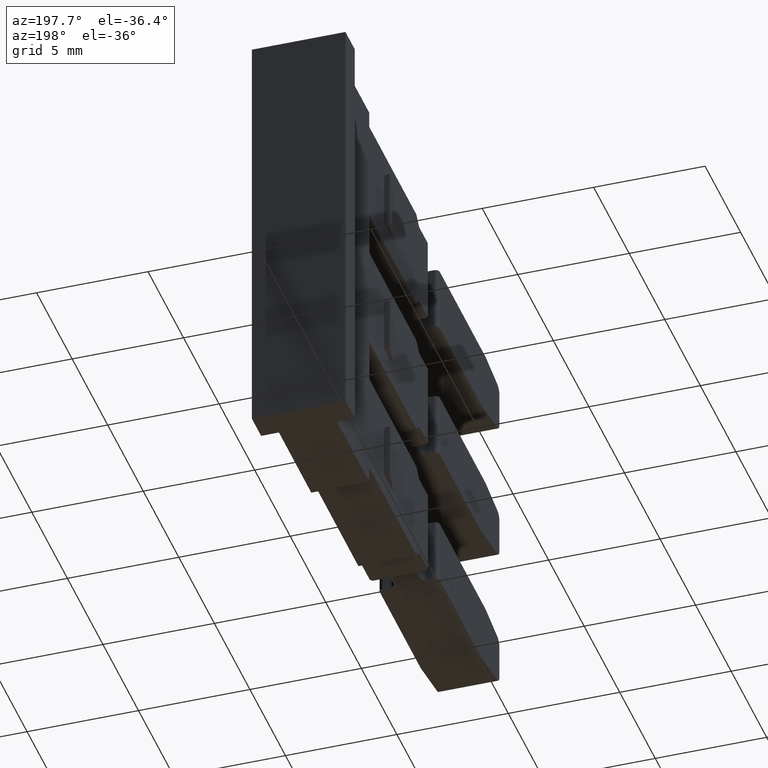
[diagram: clean part render]
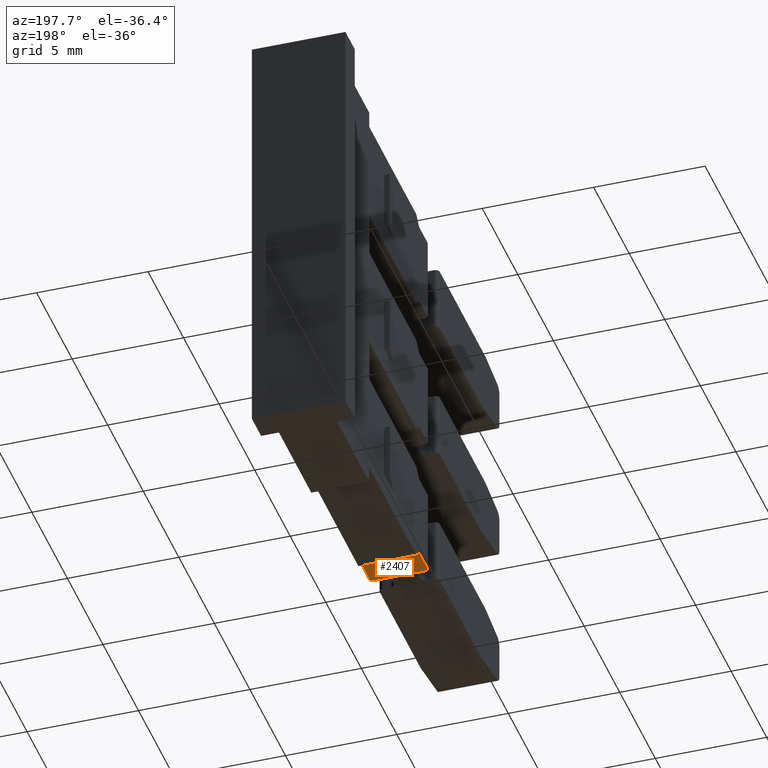
[diagram: same view with one face highlighted and labeled with its STEP entity id]
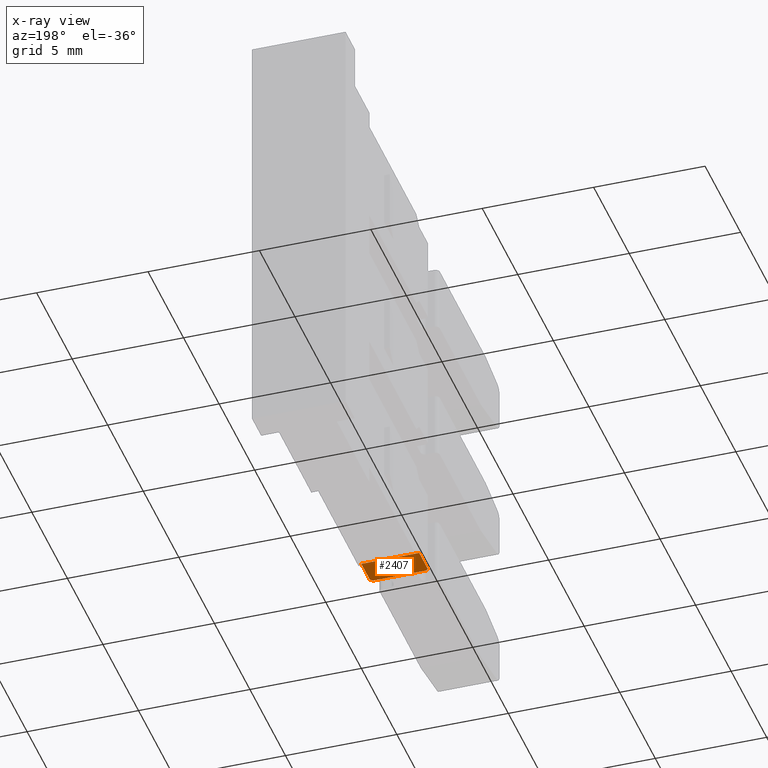
[diagram: x-ray of the same camera — body ghosted, the highlighted face saturated]
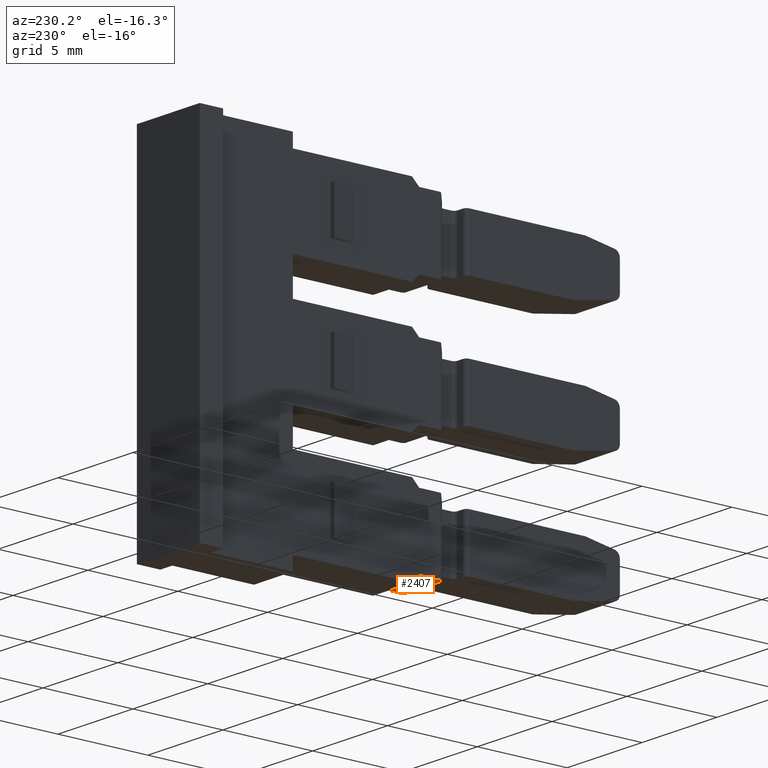
[diagram: same view with one face highlighted and labeled with its STEP entity id]
A machine part, auxiliary view. The second image highlights one B-rep face of the part: STEP entity #2407.
The next image is the same camera in x-ray: the body ghosted, the highlighted face saturated — about 0% of this face is hidden behind the body in this view.
A second angle (auxiliary view) of the same face is appended — the face is thin or edge-on in the first view.
In plain terms, the highlighted planar face has unit normal (0, -0, -1).
Its self-contained STEP definition (entity closure, byte-faithful):
#53 = EDGE_LOOP ( 'NONE', ( #757, #736, #762, #765, #743, #732 ) ) ;
#732 = ORIENTED_EDGE ( 'NONE', *, *, #2697, .F. ) ;
#736 = ORIENTED_EDGE ( 'NONE', *, *, #2602, .T. ) ;
#743 = ORIENTED_EDGE ( 'NONE', *, *, #2699, .F. ) ;
#757 = ORIENTED_EDGE ( 'NONE', *, *, #2334, .T. ) ;
#762 = ORIENTED_EDGE ( 'NONE', *, *, #2746, .F. ) ;
#765 = ORIENTED_EDGE ( 'NONE', *, *, #2528, .T. ) ;
#781 = VERTEX_POINT ( 'NONE', #3829 ) ;
#807 = VERTEX_POINT ( 'NONE', #3843 ) ;
#881 = VECTOR ( 'NONE', #2999, 1000.000000000000100 ) ;
#953 = AXIS2_PLACEMENT_3D ( 'NONE', #3335, #3318, #3315 ) ;
#1075 = VECTOR ( 'NONE', #1448, 1000.000000000000200 ) ;
#1145 = VECTOR ( 'NONE', #1674, 1000.000000000000200 ) ;
#1269 = VECTOR ( 'NONE', #1966, 1000.000000000000000 ) ;
#1284 = VECTOR ( 'NONE', #1978, 1000.000000000000000 ) ;
#1297 = VECTOR ( 'NONE', #2086, 1000.000000000000100 ) ;
#1406 = LINE ( 'NONE', #1459, #1075 ) ;
#1448 = DIRECTION ( 'NONE',  ( -9.483855583750710300E-006, -0.9999999999550282000, 2.389095031153598600E-030 ) ) ;
#1459 = CARTESIAN_POINT ( 'NONE',  ( 1393.382319421650900, 1065.079307296091400, -8.650000000030797100 ) ) ;
#1624 = LINE ( 'NONE', #1625, #1145 ) ;
#1625 = CARTESIAN_POINT ( 'NONE',  ( 1390.782561220172500, 1065.079098784064400, -8.650000000030800600 ) ) ;
#1674 = DIRECTION ( 'NONE',  ( -9.483855583750710300E-006, 0.9999999999550282000, -3.252725060354459100E-020 ) ) ;
#1948 = LINE ( 'NONE', #1984, #1284 ) ;
#1956 = LINE ( 'NONE', #1982, #1269 ) ;
#1966 = DIRECTION ( 'NONE',  ( 0.9999999999550282000, -9.483855864170154500E-006, 2.642107618258721600E-013 ) ) ;
#1978 = DIRECTION ( 'NONE',  ( 0.7071134872533426700, 0.7071000750561526900, 0.0000000000000000000 ) ) ;
#1982 = CARTESIAN_POINT ( 'NONE',  ( 1390.882550808740000, 1063.777122491452500, -8.650000000030758000 ) ) ;
#1984 = CARTESIAN_POINT ( 'NONE',  ( 1392.982304226553400, 1063.477102577646300, -8.650000000030507500 ) ) ;
#2079 = CARTESIAN_POINT ( 'NONE',  ( 1393.332320368061100, 1065.079099258248100, -8.650000000030727800 ) ) ;
#2086 = DIRECTION ( 'NONE',  ( -0.9999999999550282000, 9.483855579765008700E-006, -6.939562466272956300E-016 ) ) ;
#2116 = LINE ( 'NONE', #2079, #1297 ) ;
#2148 = CARTESIAN_POINT ( 'NONE',  ( 1390.882550808740000, 1063.777122491452500, -8.650000000030784600 ) ) ;
#2209 = CARTESIAN_POINT ( 'NONE',  ( 1390.782572619766800, 1063.877098784086500, -8.650000000030800600 ) ) ;
#2250 = CARTESIAN_POINT ( 'NONE',  ( 1393.282307071730000, 1063.777099732509700, -8.650000000030388500 ) ) ;
#2290 = CARTESIAN_POINT ( 'NONE',  ( 1390.782561219938800, 1065.079123439795700, -8.650000000030729600 ) ) ;
#2334 = EDGE_CURVE ( 'NONE', #3741, #3804, #2992, .T. ) ;
#2407 = ADVANCED_FACE ( 'NONE', ( #3311 ), #3316, .T. ) ;
#2528 = EDGE_CURVE ( 'NONE', #807, #781, #1406, .T. ) ;
#2602 = EDGE_CURVE ( 'NONE', #3804, #3841, #1624, .T. ) ;
#2697 = EDGE_CURVE ( 'NONE', #3741, #3769, #1956, .T. ) ;
#2699 = EDGE_CURVE ( 'NONE', #3769, #781, #1948, .T. ) ;
#2746 = EDGE_CURVE ( 'NONE', #807, #3841, #2116, .T. ) ;
#2989 = CARTESIAN_POINT ( 'NONE',  ( 1390.882550808740000, 1063.777122491452500, -8.650000000030800600 ) ) ;
#2992 = LINE ( 'NONE', #2989, #881 ) ;
#2999 = DIRECTION ( 'NONE',  ( -0.7071134872522599800, 0.7071000750572354900, -3.067983329797030000E-015 ) ) ;
#3311 = FACE_OUTER_BOUND ( 'NONE', #53, .T. ) ;
#3315 = DIRECTION ( 'NONE',  ( -1.000000000000000000, 0.0000000000000000000, -1.714874837238479900E-015 ) ) ;
#3316 = PLANE ( 'NONE',  #953 ) ;
#3318 = DIRECTION ( 'NONE',  ( 1.714874837238479900E-015, -1.626362530369825000E-020, -1.000000000000000000 ) ) ;
#3335 = CARTESIAN_POINT ( 'NONE',  ( 1403.075439162830000, 1065.079215367943600, -8.650000000030781100 ) ) ;
#3741 = VERTEX_POINT ( 'NONE', #2148 ) ;
#3769 = VERTEX_POINT ( 'NONE', #2250 ) ;
#3804 = VERTEX_POINT ( 'NONE', #2209 ) ;
#3829 = CARTESIAN_POINT ( 'NONE',  ( 1393.382308020078900, 1063.877098784087400, -8.650000000030507500 ) ) ;
#3841 = VERTEX_POINT ( 'NONE', #2290 ) ;
#3843 = CARTESIAN_POINT ( 'NONE',  ( 1393.382319419673200, 1065.079098784064400, -8.650000000030727800 ) ) ;